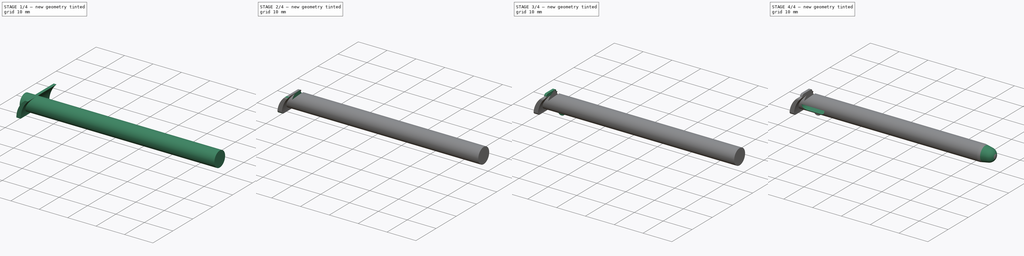
[diagram: build sequence overview — one tinted view per stage of 4, left to right]
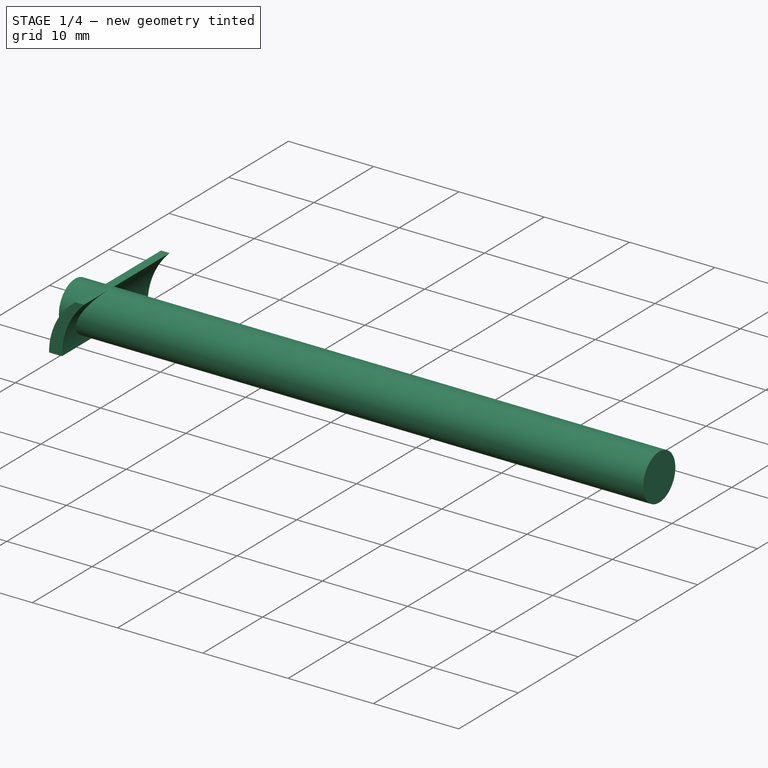
[diagram: stage 1 of 4 — iso view after this stage's code; geometry added in this stage tinted green]
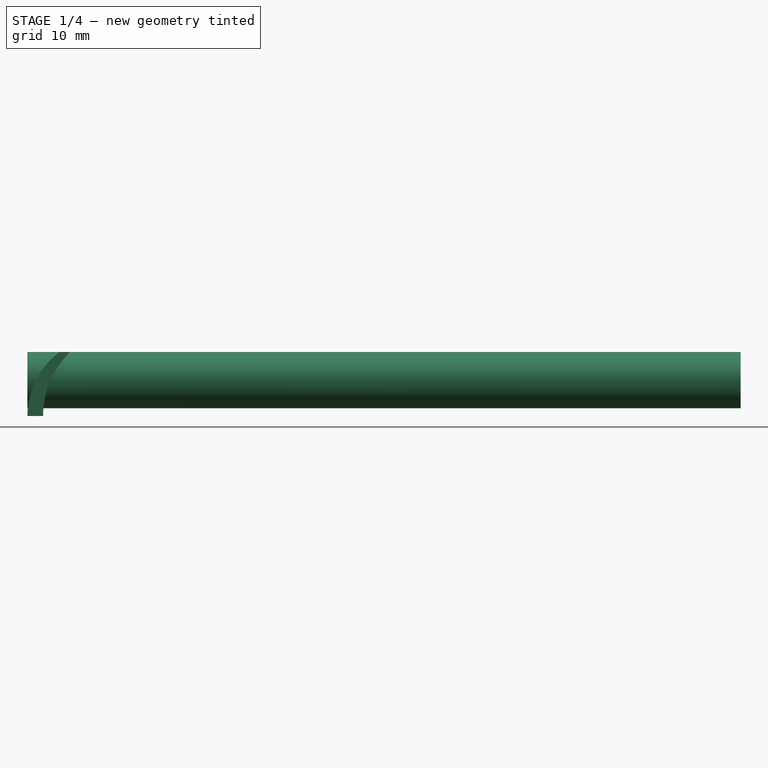
[diagram: stage 1 of 4 — front view after this stage's code; geometry added in this stage tinted green]
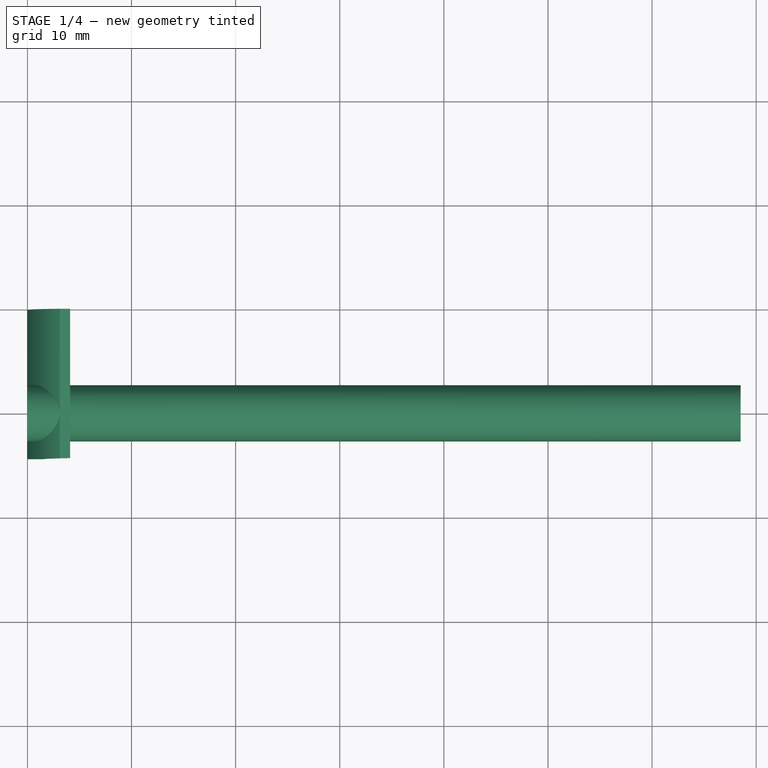
[diagram: stage 1 of 4 — top view after this stage's code; geometry added in this stage tinted green]
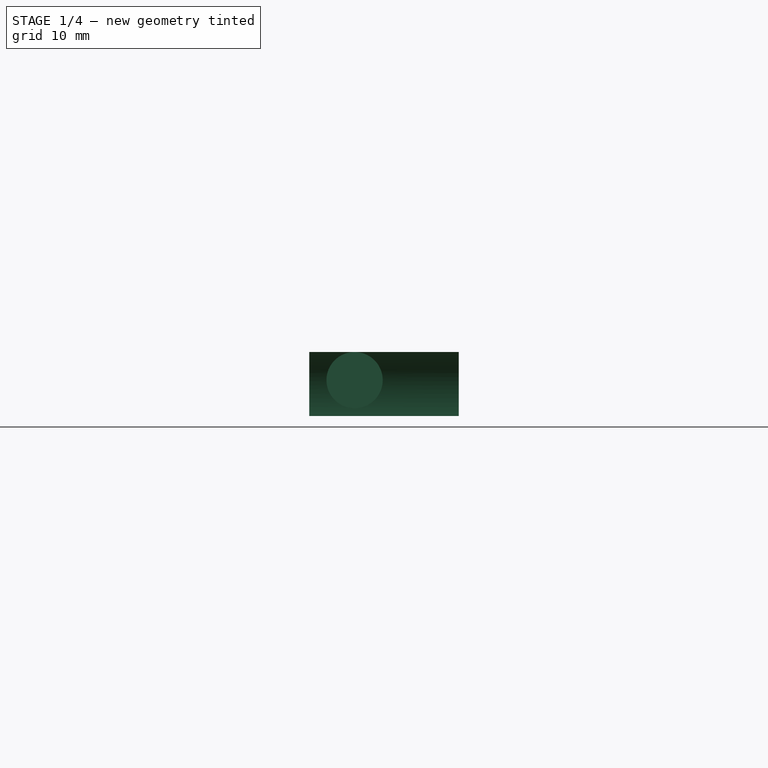
[diagram: stage 1 of 4 — right view after this stage's code; geometry added in this stage tinted green]
FCSTD DOCUMENT  (FreeCAD 1.0R39109 (Git))
Label: New 2DS XL Stylus
License: Creative Commons Attribution-NonCommercial-ShareAlike
LicenseURL: http://creativecommons.org/licenses/by-nc-sa/4.0/
objects: Sketcher::SketchObject×10, PartDesign::Pocket×5, PartDesign::Pad×4, PartDesign::Groove×1, PartDesign::Body×1
note: 51 computed .brp shape members not serialized (recipe doc carries the construction recipe); baked Part::Feature solids carry a one-line shape summary decoded from their .brp

FEATURE [Sketcher::SketchObject] Sketch
  ArcFitTolerance = 0
  AttachmentSupport = -> [YZ_Plane]
  FullyConstrained = true
  MakeInternals = false
  MapMode = 5
  Placement = pos=(0,0,0) rot=(0.57735,0.57735,0.57735;2.0944rad)
  sketch-geometry (1):
    g0: Circle CenterX=0 CenterY=0 CenterZ=0 NormalX=0 NormalY=0 NormalZ=1 AngleXU=0 Radius=2.7
  constraints (2):
    c: Coincident(g0,g-1)
    c: Diameter(g0) = 5.4
FEATURE [PartDesign::Pad] Pad
  Direction = (1,0,0)
  Length = 68.5
  Length2 = 10
  Placement = pos=(0,0,0) rot=(0.57735,0.57735,0.57735;2.0944rad)
  Profile = -> Sketch
  ReferenceAxis = -> Sketch [N_Axis]
  Suppressed = false
  Type = 0
FEATURE [Sketcher::SketchObject] Sketch001
  ArcFitTolerance = 0
  AttachmentSupport = -> [XZ_Plane]
  ExternalGeometry = -> [Pad]
  FullyConstrained = true
  MakeInternals = false
  MapMode = 5
  Placement = pos=(0,0,0) rot=(1,0,0;1.5708rad)
  sketch-geometry (9):
    g0: LineSegment [constr] StartX=0 StartY=0 StartZ=0 EndX=0 EndY=-3.45 EndZ=0
    g1: LineSegment [constr] StartX=0 StartY=-3.45 StartZ=0 EndX=4.1 EndY=-3.45 EndZ=0
    g2: LineSegment [constr] StartX=4.1 StartY=-3.45 StartZ=0 EndX=4.1 EndY=2.7 EndZ=0
    g3: LineSegment [constr] StartX=4.1 StartY=2.7 StartZ=0 EndX=-1.8e-15 EndY=2.7 EndZ=0
    g4: LineSegment [constr] StartX=-1.8e-15 StartY=2.7 StartZ=0 EndX=0 EndY=-3.45 EndZ=0
    g5: ArcOfCircle CenterX=7.6504 CenterY=-3.45 CenterZ=0 NormalX=0 NormalY=0 NormalZ=1 AngleXU=0 Radius=7.6504 StartAngle=2.2078 EndAngle=3.14159
    g6: ArcOfCircle CenterX=10.0736 CenterY=-3.45 CenterZ=0 NormalX=0 NormalY=0 NormalZ=1 AngleXU=0 Radius=8.57356 StartAngle=2.34164 EndAngle=3.14159
    g7: LineSegment StartX=3.1 StartY=2.7 StartZ=0 EndX=4.1 EndY=2.7 EndZ=0
    g8: LineSegment StartX=1.5 StartY=-3.45 StartZ=0 EndX=0 EndY=-3.45 EndZ=0
  constraints (25):
    c: Coincident(g0,g-1)
    c: Vertical(g0)
    c: Distance(g0) = 3.45
    c: Coincident(g1,g2)
    c: Coincident(g2,g3)
    c: Coincident(g3,g4)
    c: Coincident(g4,g1)
    c: Horizontal(g1)
    c: Horizontal(g3)
    c: Vertical(g2)
    c: Coincident(g1,g0)
    c: Distance(g3) = 4.1
    c: Coincident(g5,g0)
    c: PointOnObject(g5,g3)
    c: PointOnObject(g6,g1)
    c: Coincident(g6,g2)
    c: Tangent(g-2,g5)
    c: Distance(g6,g5) = 1
    c: Distance(g5,g6) = 1.5
    c: Perpendicular(g6,g1)
    c: Coincident(g7,g5)
    c: Coincident(g7,g6)
    c: Coincident(g8,g6)
    c: Coincident(g8,g5)
    c: Coincident(g3,g-3)
FEATURE [PartDesign::Pad] Pad001
  BaseFeature = -> Pad
  Direction = (0,-1,2e-16)
  Length = 4.35
  Length2 = 10
  Placement = pos=(0,0,0) rot=(0.57735,0.57735,0.57735;2.0944rad)
  Profile = -> Sketch001
  ReferenceAxis = -> Sketch001 [N_Axis]
  Suppressed = false
  Type = 4
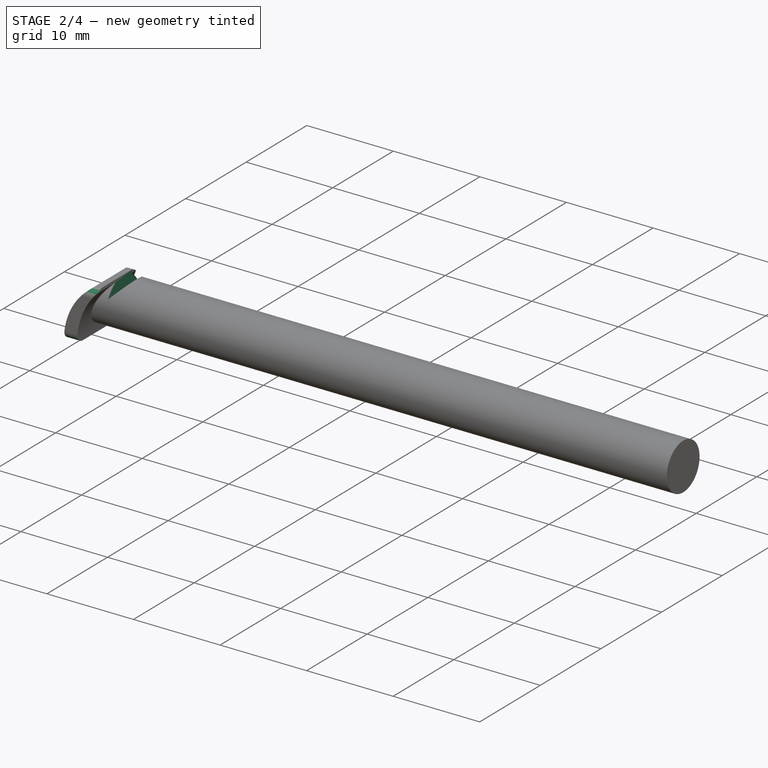
[diagram: stage 2 of 4 — iso view after this stage's code; geometry added in this stage tinted green]
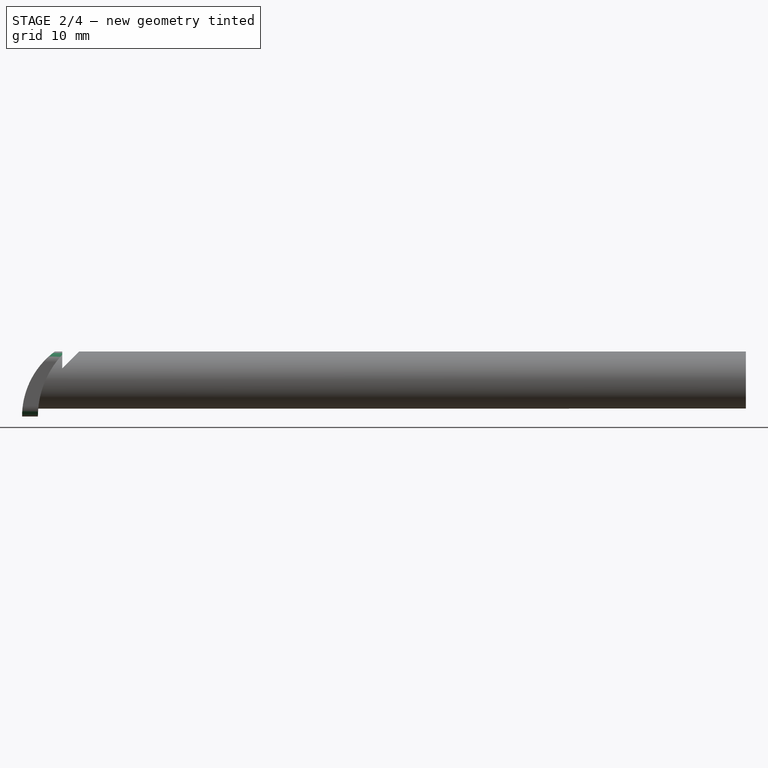
[diagram: stage 2 of 4 — front view after this stage's code; geometry added in this stage tinted green]
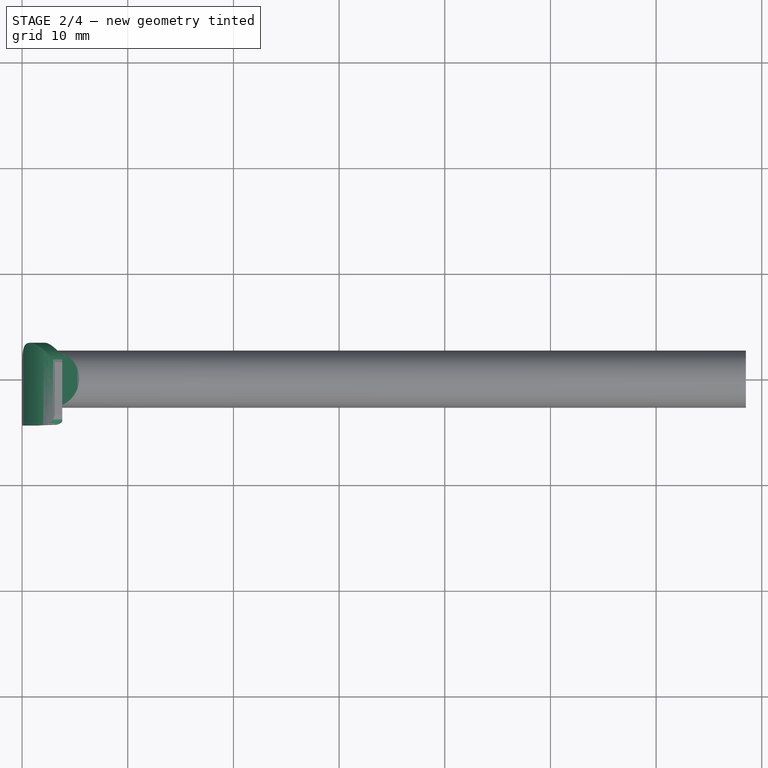
[diagram: stage 2 of 4 — top view after this stage's code; geometry added in this stage tinted green]
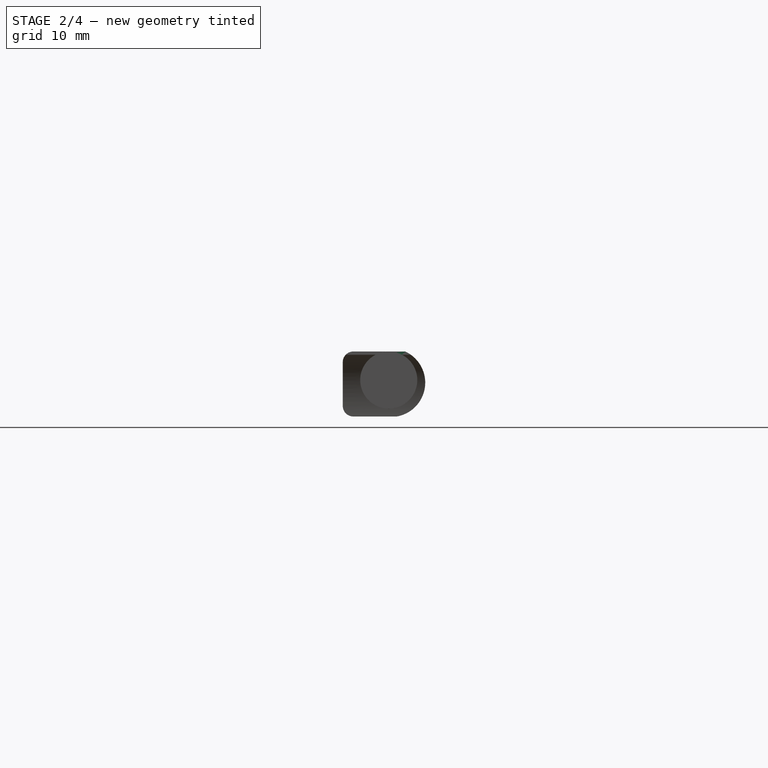
[diagram: stage 2 of 4 — right view after this stage's code; geometry added in this stage tinted green]
FEATURE [Sketcher::SketchObject] Sketch002
  ArcFitTolerance = 0
  AttachmentSupport = -> [Pad001]
  ExternalGeometry = -> [Pad001]
  FullyConstrained = true
  MakeInternals = false
  MapMode = 5
  Placement = pos=(0,0,0) rot=(0.57735,0.57735,-0.57735;4.18879rad)
  sketch-geometry (13):
    g0: LineSegment [constr] StartX=-4.35 StartY=3.45 StartZ=0 EndX=-4.35 EndY=-2.7 EndZ=0
    g1: ArcOfCircle CenterX=-3.35 CenterY=-1.7 CenterZ=0 NormalX=0 NormalY=0 NormalZ=1 AngleXU=0 Radius=1 StartAngle=3.14159 EndAngle=4.71239
    g2: ArcOfCircle CenterX=-3.35 CenterY=2.45 CenterZ=0 NormalX=0 NormalY=0 NormalZ=1 AngleXU=0 Radius=1 StartAngle=1.5708 EndAngle=3.14159
    g3: LineSegment StartX=-4.35 StartY=2.45 StartZ=0 EndX=-4.35 EndY=3.45 EndZ=0
    g4: LineSegment StartX=-4.35 StartY=3.45 StartZ=0 EndX=-3.35 EndY=3.45 EndZ=0
    g5: LineSegment StartX=-4.35 StartY=-1.7 StartZ=0 EndX=-4.35 EndY=-2.7 EndZ=0
    g6: LineSegment StartX=-4.35 StartY=-2.7 StartZ=0 EndX=-3.35 EndY=-2.7 EndZ=0
    g7: LineSegment [constr] StartX=-3.35 StartY=-2.7 StartZ=0 EndX=1.564 EndY=-2.7 EndZ=0
    g8: ArcOfCircle CenterX=0.200162 CenterY=0.249991 CenterZ=0 NormalX=0 NormalY=0 NormalZ=1 AngleXU=0 Radius=3.25 StartAngle=5.14544 EndAngle=7.67836
    g9: LineSegment [constr] StartX=-3.35 StartY=3.45 StartZ=0 EndX=0.768 EndY=3.45 EndZ=0
    g10: LineSegment StartX=0.768 StartY=3.45 StartZ=0 EndX=10 EndY=3.45 EndZ=0
    g11: LineSegment StartX=10 StartY=3.45 StartZ=0 EndX=10 EndY=-2.7 EndZ=0
    g12: LineSegment StartX=10 StartY=-2.7 StartZ=0 EndX=1.564 EndY=-2.7 EndZ=0
  constraints (35):
    c: Coincident(g0,g-3)
    c: Coincident(g0,g-4)
    c: PointOnObject(g1,g0)
    c: PointOnObject(g1,g-4)
    c: Tangent(g2,g0) = -1.5708
    c: Tangent(g2,g-3) = -1.5708
    c: Coincident(g3,g2)
    c: Coincident(g3,g0)
    c: Vertical(g3)
    c: Tangent(g3,g2)
    c: Coincident(g4,g3)
    c: Coincident(g4,g2)
    c: Coincident(g5,g1)
    c: Coincident(g5,g0)
    c: Tangent(g5,g1)
    c: Coincident(g6,g5)
    c: Radius(g1) = 1
    c: Equal(g1,g2)
    c: Tangent(g1,g6) = -1.5708
    c: Coincident(g7,g1)
    c: Horizontal(g7)
    c: Distance(g7) = 4.914
    c: Coincident(g8,g7)
    c: PointOnObject(g8,g-3)
    c: Radius(g8) = 3.25
    c: Coincident(g9,g2)
    c: Coincident(g9,g8)
    c: Distance(g9) = 4.118
    c: Coincident(g10,g8)
    c: Coincident(g10,g-3)
    c: Coincident(g11,g10)
    c: Vertical(g11)
    c: Coincident(g12,g11)
    c: Coincident(g12,g8)
    c: Horizontal(g12)
FEATURE [PartDesign::Pocket] Pocket
  BaseFeature = -> Pad001
  Direction = (1,0,0)
  Length = 10
  Length2 = 5
  Placement = pos=(0,0,0) rot=(0.57735,0.57735,0.57735;2.0944rad)
  Profile = -> Sketch002
  ReferenceAxis = -> Sketch002 [N_Axis]
  Suppressed = false
  Type = 0
FEATURE [Sketcher::SketchObject] Sketch003
  ArcFitTolerance = 0
  AttachmentSupport = -> [Pad001]
  ExternalGeometry = -> [Pad001]
  FullyConstrained = true
  MakeInternals = false
  MapMode = 5
  Placement = pos=(0,-4.35,1.4e-15) rot=(0.57735,0.57735,-0.57735;2.0944rad)
  sketch-geometry (4):
    g0: LineSegment StartX=-2.7 StartY=3.1 StartZ=0 EndX=-2.7 EndY=-1 EndZ=0
    g1: LineSegment StartX=-2.7 StartY=-1 StartZ=0 EndX=3.45 EndY=-1 EndZ=0
    g2: LineSegment StartX=3.45 StartY=-1 StartZ=0 EndX=3.45 EndY=3.6e-15 EndZ=0
    g3: ArcOfCircle CenterX=3.45 CenterY=7.6504 CenterZ=0 NormalX=0 NormalY=0 NormalZ=1 AngleXU=0 Radius=7.6504 StartAngle=3.7786 EndAngle=4.71239
  constraints (11):
    c: Coincident(g0,g-3)
    c: Vertical(g0)
    c: Coincident(g1,g0)
    c: Horizontal(g1)
    c: Coincident(g2,g1)
    c: Coincident(g2,g-3)
    c: Vertical(g2)
    c: Coincident(g3,g0)
    c: Coincident(g3,g2)
    c: Equal(g3,g-3)
    c: Distance(g2) = 1
FEATURE [PartDesign::Pocket] Pocket001
  BaseFeature = -> Pocket
  Direction = (0,1,0)
  Length = 10
  Length2 = 5
  Placement = pos=(0,0,0) rot=(0.57735,0.57735,0.57735;2.0944rad)
  Profile = -> Sketch003
  ReferenceAxis = -> Sketch003 [N_Axis]
  Refine = true
  Suppressed = false
  Type = 0
FEATURE [Sketcher::SketchObject] Sketch004
  ArcFitTolerance = 0
  AttachmentSupport = -> [Pocket001]
  ExternalGeometry = -> [Pocket001]
  FullyConstrained = true
  MakeInternals = false
  MapMode = 5
  Placement = pos=(0,-4.35,4.3e-15) rot=(0.57735,0.57735,-0.57735;2.0944rad)
  sketch-geometry (11):
    g0: LineSegment StartX=-2.7 StartY=4.17574 StartZ=0 EndX=-2.7 EndY=4.55147 EndZ=0
    g1: LineSegment [constr] StartX=-2.7 StartY=4.55147 StartZ=0 EndX=-2.32426 EndY=4.17574 EndZ=0
    g2: LineSegment [constr] StartX=-2.7 StartY=4.17574 StartZ=0 EndX=-2.32426 EndY=4.17574 EndZ=0
    g3: LineSegment StartX=-2.7 StartY=4.17574 StartZ=0 EndX=-2.7 EndY=3.8 EndZ=0
    g4: LineSegment StartX=-2.7 StartY=3.8 StartZ=0 EndX=-1.94853 EndY=3.8 EndZ=0
    g5: LineSegment [constr] StartX=-1.94853 StartY=3.8 StartZ=0 EndX=-2.32426 EndY=4.17574 EndZ=0
    g6: LineSegment [constr] StartX=-2.32426 StartY=4.17574 StartZ=0 EndX=-1.9 EndY=4.6 EndZ=0
    g7: LineSegment StartX=-1.94853 StartY=3.8 StartZ=0 EndX=-1.1 EndY=3.8 EndZ=0
    g8: LineSegment StartX=-1.1 StartY=3.8 StartZ=0 EndX=-2.7 EndY=5.4 EndZ=0
    g9: LineSegment StartX=-2.7 StartY=5.4 StartZ=0 EndX=-2.7 EndY=4.55147 EndZ=0
    g10: LineSegment [constr] StartX=-2.7 StartY=3.8 StartZ=0 EndX=-2.7 EndY=0 EndZ=0
  constraints (31):
    c: Vertical(g0)
    c: Coincident(g1,g0)
    c: Coincident(g2,g0)
    c: Coincident(g2,g1)
    c: Horizontal(g2)
    c: Coincident(g3,g0)
    c: Vertical(g3)
    c: Coincident(g4,g3)
    c: Horizontal(g4)
    c: Coincident(g5,g4)
    c: Coincident(g5,g1)
    c: Parallel(g1,g5)
    c: Coincident(g6,g1)
    c: Coincident(g7,g4)
    c: Horizontal(g7)
    c: Coincident(g8,g7)
    c: Coincident(g9,g8)
    c: Coincident(g9,g0)
    c: Vertical(g9)
    c: Distance(g6) = 0.6
    c: Perpendicular(g6,g5)
    c: PointOnObject(g6,g8)
    c: Parallel(g8,g1)
    c: Equal(g0,g2)
    c: Distance(g3,g7) = 1.6
    c: Coincident(g10,g3)
    c: PointOnObject(g10,g-1)
    c: Vertical(g10)
    c: Distance(g10) = 3.8
    c: PointOnObject(g3,g-3)
    c: Equal(g0,g3)
FEATURE [PartDesign::Pocket] Pocket002
  BaseFeature = -> Pocket001
  Direction = (0,1,0)
  Length = 200
  Length2 = 5
  Placement = pos=(0,0,0) rot=(0.57735,0.57735,0.57735;2.0944rad)
  Profile = -> Sketch004
  ReferenceAxis = -> Sketch004 [N_Axis]
  Refine = true
  Suppressed = false
  Type = 0
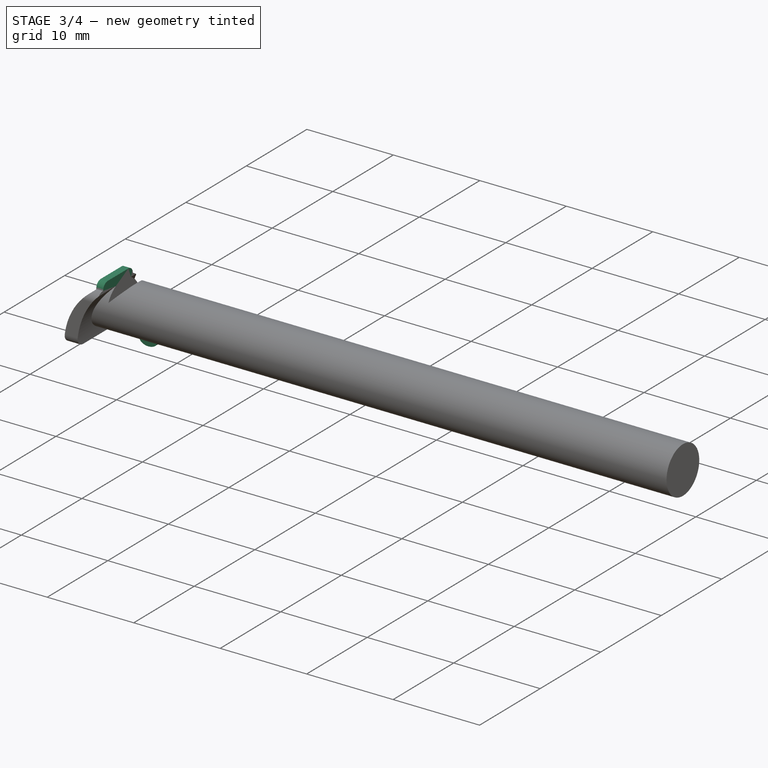
[diagram: stage 3 of 4 — iso view after this stage's code; geometry added in this stage tinted green]
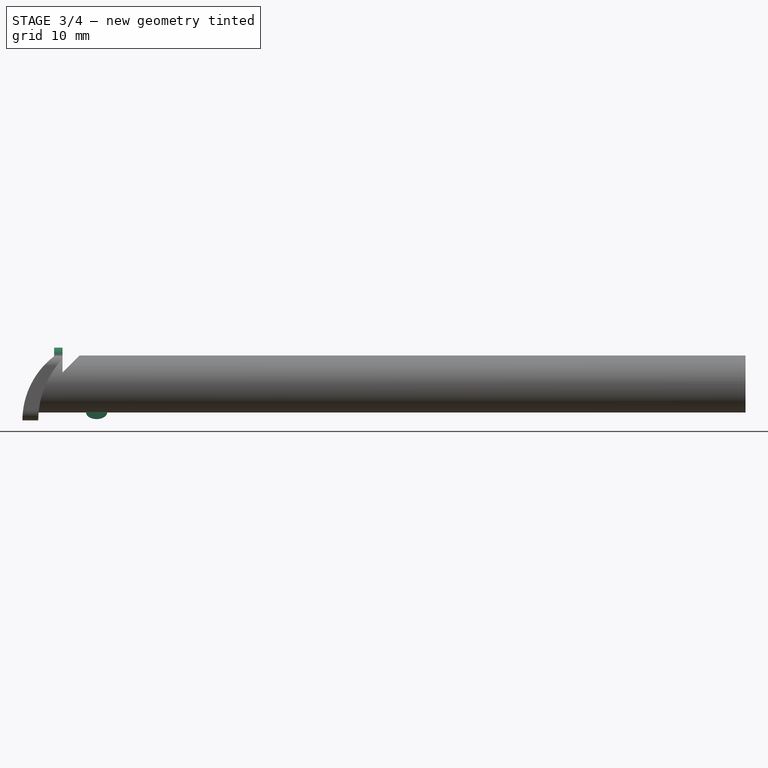
[diagram: stage 3 of 4 — front view after this stage's code; geometry added in this stage tinted green]
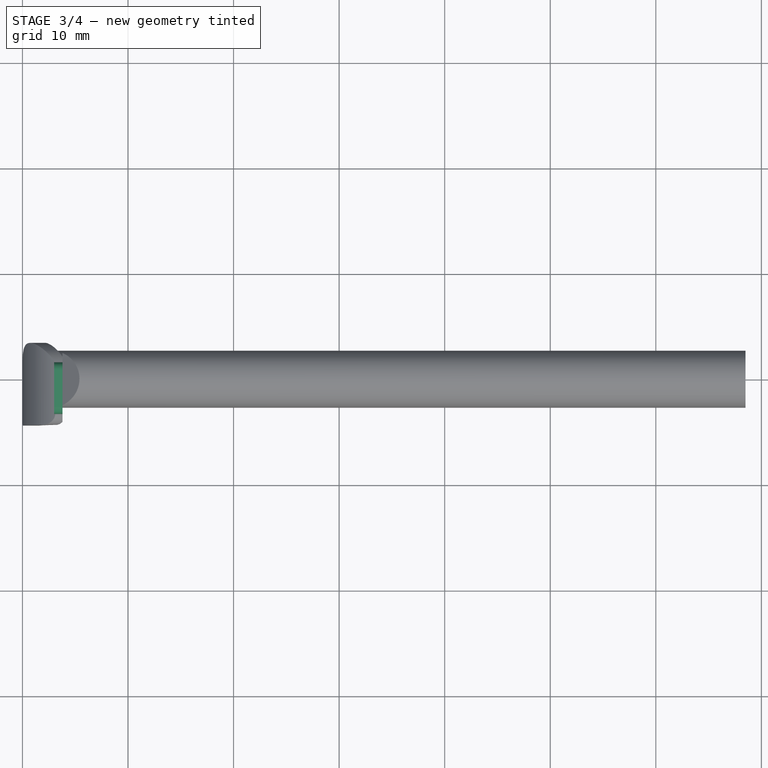
[diagram: stage 3 of 4 — top view after this stage's code; geometry added in this stage tinted green]
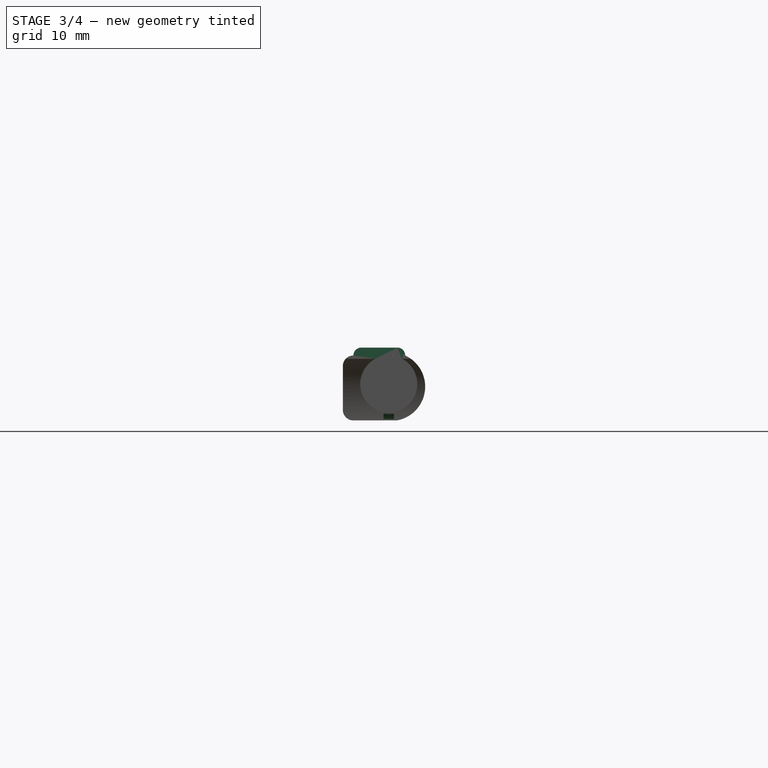
[diagram: stage 3 of 4 — right view after this stage's code; geometry added in this stage tinted green]
FEATURE [Sketcher::SketchObject] Sketch005
  ArcFitTolerance = 0
  AttachmentSupport = -> [Pocket002]
  ExternalGeometry = -> [Pocket002]
  FullyConstrained = true
  MakeInternals = false
  MapMode = 5
  Placement = pos=(4.96e-14,3.2e-15,2.7) rot=(0,0,-1;1.5708rad)
  sketch-geometry (4):
    g0: LineSegment StartX=-1.564 StartY=3.8 StartZ=0 EndX=3.35 EndY=3.8 EndZ=0
    g1: LineSegment StartX=3.35 StartY=3.8 StartZ=0 EndX=3.35 EndY=3 EndZ=0
    g2: LineSegment StartX=3.35 StartY=3 StartZ=0 EndX=-1.564 EndY=3 EndZ=0
    g3: LineSegment StartX=-1.564 StartY=3 StartZ=0 EndX=-1.564 EndY=3.8 EndZ=0
  constraints (11):
    c: Coincident(g0,g1)
    c: Coincident(g1,g2)
    c: Coincident(g2,g3)
    c: Coincident(g3,g0)
    c: Horizontal(g0)
    c: Horizontal(g2)
    c: Vertical(g1)
    c: Vertical(g3)
    c: Coincident(g0,g-3)
    c: PointOnObject(g-4,g1)
    c: Distance(g1) = 0.8
FEATURE [PartDesign::Pad] Pad002
  BaseFeature = -> Pocket002
  Direction = (1.84e-14,1.2e-15,1)
  Length = 0.75
  Length2 = 0.25
  Placement = pos=(0,0,0) rot=(0.57735,0.57735,0.57735;2.0944rad)
  Profile = -> Sketch005
  ReferenceAxis = -> Sketch005 [N_Axis]
  Refine = true
  Suppressed = false
  Type = 4
FEATURE [Sketcher::SketchObject] Sketch006
  ArcFitTolerance = 0
  AttachmentSupport = -> [Pad002]
  ExternalGeometry = -> [Pad002]
  FullyConstrained = true
  MakeInternals = false
  MapMode = 5
  Placement = pos=(3,7e-16,-5.41e-14) rot=(-0.57735,-0.57735,0.57735;2.0944rad)
  sketch-geometry (7):
    g0: LineSegment [constr] StartX=-3.35 StartY=-3.45 StartZ=0 EndX=1.564 EndY=-3.45 EndZ=0
    g1: ArcOfCircle CenterX=-2.6 CenterY=-2.7 CenterZ=0 NormalX=0 NormalY=0 NormalZ=1 AngleXU=0 Radius=0.75 StartAngle=3.14159 EndAngle=4.71239
    g2: ArcOfCircle CenterX=0.814 CenterY=-2.7 CenterZ=0 NormalX=0 NormalY=0 NormalZ=1 AngleXU=0 Radius=0.75 StartAngle=4.71239 EndAngle=6.28319
    g3: LineSegment StartX=-3.35 StartY=-2.7 StartZ=0 EndX=-3.35 EndY=-3.45 EndZ=0
    g4: LineSegment StartX=-3.35 StartY=-3.45 StartZ=0 EndX=-2.6 EndY=-3.45 EndZ=0
    g5: LineSegment StartX=0.814 StartY=-3.45 StartZ=0 EndX=1.564 EndY=-3.45 EndZ=0
    g6: LineSegment StartX=1.564 StartY=-3.45 StartZ=0 EndX=1.564 EndY=-2.7 EndZ=0
  constraints (16):
    c: Coincident(g0,g-3)
    c: Coincident(g0,g-4)
    c: Tangent(g2,g-4) = 1.5708
    c: Tangent(g2,g0) = -1.5708
    c: Tangent(g1,g0) = -1.5708
    c: Tangent(g1,g-3) = -1.5708
    c: Equal(g1,g2)
    c: Radius(g1) = 0.75
    c: Coincident(g3,g1)
    c: Coincident(g3,g0)
    c: Coincident(g4,g3)
    c: Coincident(g4,g1)
    c: Coincident(g5,g2)
    c: Coincident(g5,g0)
    c: Coincident(g6,g5)
    c: Coincident(g6,g2)
FEATURE [PartDesign::Pocket] Pocket003
  BaseFeature = -> Pad002
  Direction = (1,1e-16,-1.79e-14)
  Length = 5
  Length2 = 5
  Placement = pos=(0,0,0) rot=(0.57735,0.57735,0.57735;2.0944rad)
  Profile = -> Sketch006
  ReferenceAxis = -> Sketch006 [N_Axis]
  Refine = true
  Suppressed = false
  Type = 0
FEATURE [Sketcher::SketchObject] Sketch007
  ArcFitTolerance = 0
  AttachmentSupport = -> [XZ_Plane]
  ExternalGeometry = -> [Pad]
  FullyConstrained = true
  MakeInternals = false
  MapMode = 5
  Placement = pos=(0,0,0) rot=(1,0,0;1.5708rad)
  sketch-geometry (9):
    g0: LineSegment [constr] StartX=0 StartY=0 StartZ=0 EndX=8.025 EndY=0 EndZ=0
    g1: LineSegment [constr] StartX=0 StartY=-2.7 StartZ=0 EndX=6.025 EndY=-2.7 EndZ=0
    g2: LineSegment [constr] StartX=8.025 StartY=0 StartZ=0 EndX=8.025 EndY=-2.7 EndZ=0
    g3: LineSegment [constr] StartX=8.025 StartY=-2.7 StartZ=0 EndX=6.025 EndY=-2.7 EndZ=0
    g4: Ellipse CenterX=7.025 CenterY=-2.7 CenterZ=0 NormalX=0 NormalY=0 NormalZ=1 MajorRadius=1 MinorRadius=0.625 AngleXU=1.1e-15
    g5: LineSegment [constr] StartX=8.025 StartY=-2.7 StartZ=0 EndX=6.025 EndY=-2.7 EndZ=0
    g6: LineSegment [constr] StartX=7.025 StartY=-2.075 StartZ=0 EndX=7.025 EndY=-3.325 EndZ=0
    g7: GeomPoint [constr] X=7.80562 Y=-2.7 Z=0
    g8: GeomPoint [constr] X=6.24438 Y=-2.7 Z=0
  constraints (15):
    c: Coincident(g0,g-1)
    c: PointOnObject(g0,g-1)
    c: Distance(g0) = 8.025
    c: Coincident(g1,g-3)
    c: Horizontal(g1)
    c: Coincident(g2,g0)
    c: Vertical(g2)
    c: Coincident(g3,g2)
    c: Coincident(g3,g1)
    c: Horizontal(g3)
    c: InternalAlignment(g5-g8 -> g4) x4
    c: Distance(g6) = 1.25
    c: Distance(g5) = 2
    c: Symmetric(g1,g2,g4)
    c: Coincident(g5,g2)
FEATURE [PartDesign::Pad] Pad003
  BaseFeature = -> Pocket003
  Direction = (0,-1,2e-16)
  Length = 0.5
  Length2 = 0.5
  Placement = pos=(0,0,0) rot=(0.57735,0.57735,0.57735;2.0944rad)
  Profile = -> Sketch007
  ReferenceAxis = -> Sketch007 [N_Axis]
  Refine = true
  Suppressed = false
  Type = 4
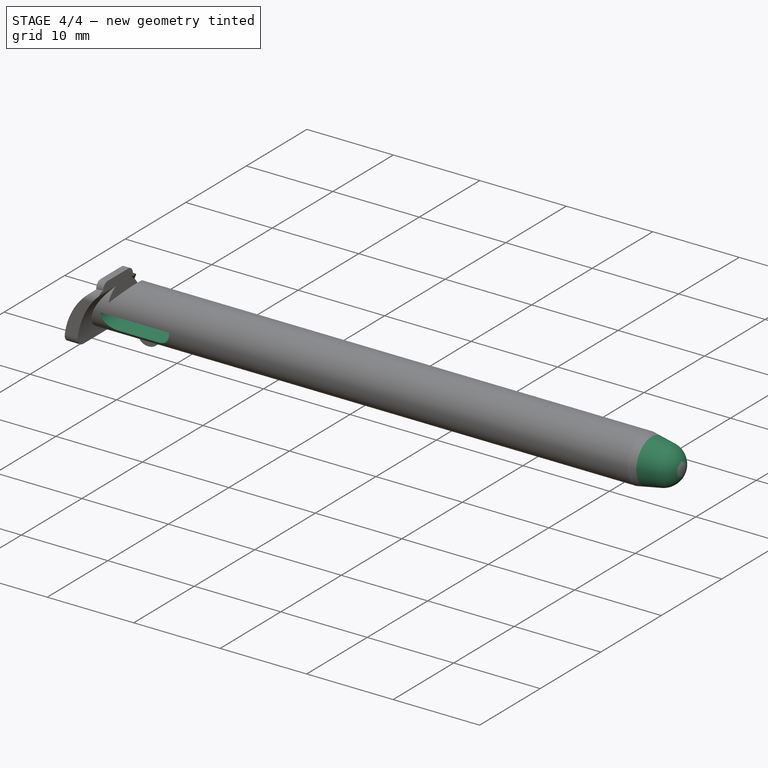
[diagram: stage 4 of 4 — iso view after this stage's code; geometry added in this stage tinted green]
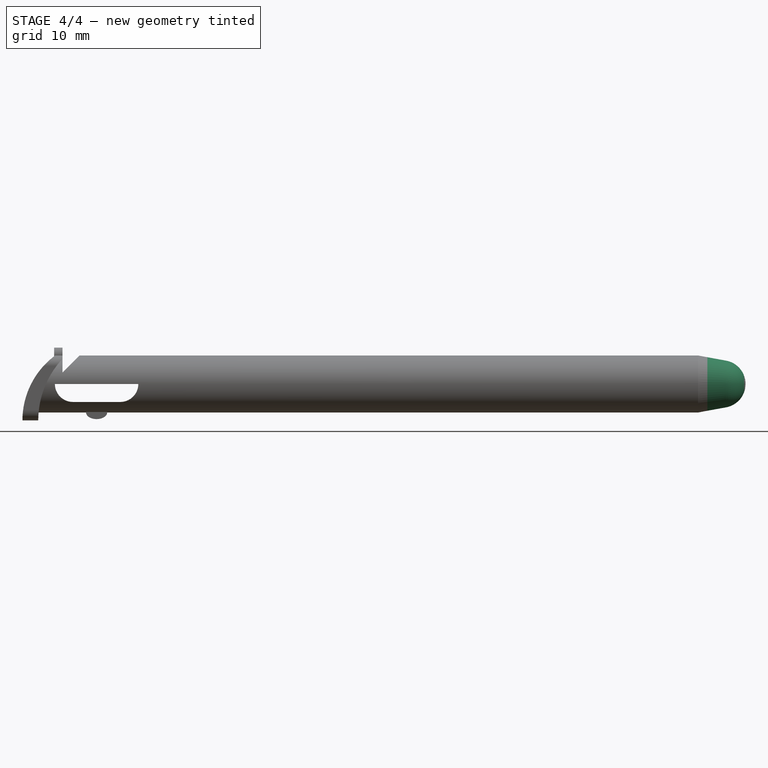
[diagram: stage 4 of 4 — front view after this stage's code; geometry added in this stage tinted green]
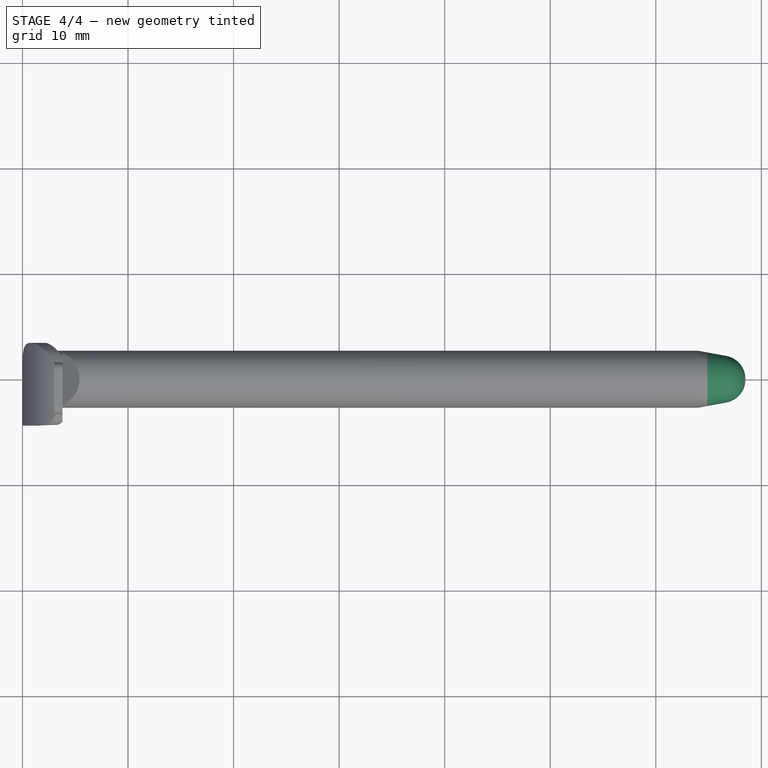
[diagram: stage 4 of 4 — top view after this stage's code; geometry added in this stage tinted green]
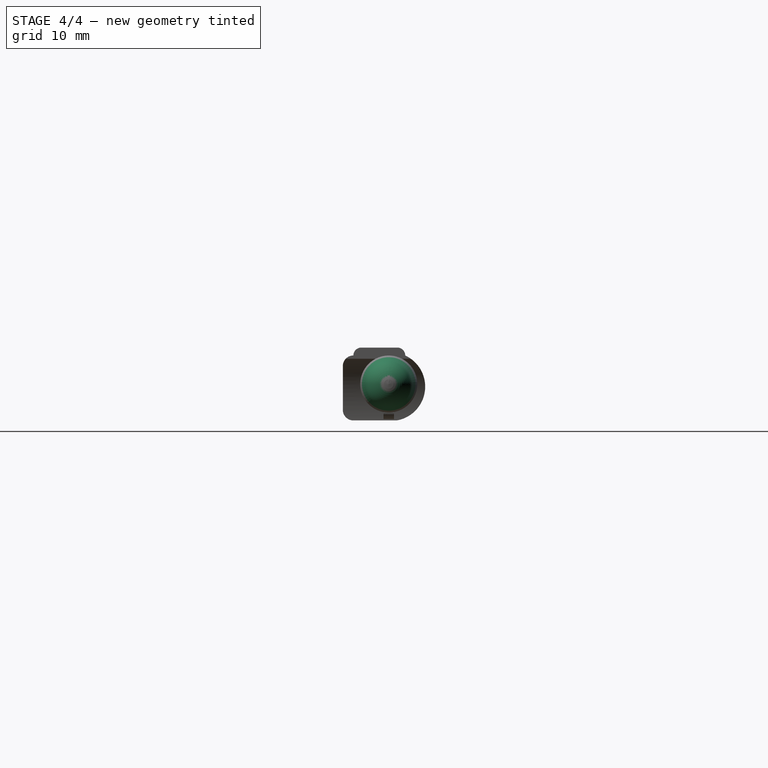
[diagram: stage 4 of 4 — right view after this stage's code; geometry added in this stage tinted green]
FEATURE [Sketcher::SketchObject] Sketch008
  ArcFitTolerance = 0
  AttachmentSupport = -> [XZ_Plane]
  ExternalGeometry = -> [Pad003]
  FullyConstrained = false
  MakeInternals = false
  MapMode = 5
  Placement = pos=(0,0,0) rot=(1,0,0;1.5708rad)
  sketch-geometry (8):
    g0: ArcOfCircle [constr] CenterX=4.775 CenterY=0 CenterZ=0 NormalX=0 NormalY=0 NormalZ=1 AngleXU=0 Radius=1.7 StartAngle=1.5708 EndAngle=4.71239
    g1: ArcOfCircle [constr] CenterX=9.275 CenterY=0 CenterZ=0 NormalX=0 NormalY=0 NormalZ=1 AngleXU=0 Radius=1.7 StartAngle=4.71239 EndAngle=7.85398
    g2: LineSegment StartX=4.775 StartY=-1.7 StartZ=0 EndX=9.275 EndY=-1.7 EndZ=0
    g3: LineSegment [constr] StartX=9.275 StartY=1.7 StartZ=0 EndX=4.775 EndY=1.7 EndZ=0
    g4: LineSegment [constr] StartX=7.025 StartY=-2.7 StartZ=0 EndX=7.025 EndY=-1.7 EndZ=0
    g5: ArcOfCircle CenterX=4.775 CenterY=0 CenterZ=0 NormalX=0 NormalY=0 NormalZ=1 AngleXU=0 Radius=1.7 StartAngle=3.14159 EndAngle=4.71239
    g6: ArcOfCircle CenterX=9.275 CenterY=0 CenterZ=0 NormalX=0 NormalY=0 NormalZ=1 AngleXU=0 Radius=1.7 StartAngle=4.71239 EndAngle=6.28319
    g7: LineSegment StartX=3.075 StartY=2e-16 StartZ=0 EndX=10.975 EndY=-5e-16 EndZ=0
  constraints (20):
    c: Tangent(g0,g2) = -1.5708
    c: Tangent(g2,g1) = -1.5708
    c: Tangent(g1,g3) = -1.5708
    c: Tangent(g3,g0) = -1.5708
    c: Equal(g0,g1)
    c: PointOnObject(g0,g-1)
    c: Horizontal(g2)
    c: Vertical(g4)
    c: Symmetric(g0,g1,g4)
    c: Distance(g4) = 1
    c: Distance(g2) = 4.5
    c: PointOnObject(g5,g0)
    c: Coincident(g5,g2)
    c: Coincident(g6,g2)
    c: PointOnObject(g6,g1)
    c: Coincident(g7,g5)
    c: Coincident(g7,g6)
    c: Tangent(g7,g-1)
    c: Equal(g5,g0)
    c: Equal(g6,g1)
FEATURE [PartDesign::Pocket] Pocket004
  BaseFeature = -> Pad003
  Direction = (0,1,-2e-16)
  Length = 10
  Length2 = 10
  Placement = pos=(0,0,0) rot=(0.57735,0.57735,0.57735;2.0944rad)
  Profile = -> Sketch008
  ReferenceAxis = -> Sketch008 [N_Axis]
  Refine = true
  Suppressed = false
  Type = 4
FEATURE [Sketcher::SketchObject] Sketch009
  ArcFitTolerance = 0
  AttachmentSupport = -> [XZ_Plane]
  ExternalGeometry = -> [Pocket004]
  FullyConstrained = true
  MakeInternals = false
  MapMode = 5
  Placement = pos=(0,0,0) rot=(1,0,0;1.5708rad)
  sketch-geometry (6):
    g0: LineSegment StartX=68.5 StartY=2.7 StartZ=0 EndX=64 EndY=2.7 EndZ=0
    g1: LineSegment StartX=64 StartY=2.7 StartZ=0 EndX=66.6557 EndY=2.21311 EndZ=0
    g2: ArcOfCircle CenterX=66.25 CenterY=-8.83891e-07 CenterZ=0 NormalX=0 NormalY=0 NormalZ=1 AngleXU=0 Radius=2.25 StartAngle=3.92841e-07 EndAngle=1.38948
    g3: LineSegment StartX=68.5 StartY=2.7 StartZ=0 EndX=69.5 EndY=2.7 EndZ=0
    g4: LineSegment StartX=69.5 StartY=2.7 StartZ=0 EndX=69.5 EndY=4.93e-14 EndZ=0
    g5: LineSegment StartX=69.5 StartY=4.92e-14 StartZ=0 EndX=68.5 EndY=4.92e-14 EndZ=0
  constraints (16):
    c: Coincident(g0,g-3)
    c: Horizontal(g0)
    c: Coincident(g1,g0)
    c: Symmetric(g0,g-3,g2)
    c: Tangent(g2,g-3)
    c: Tangent(g2,g1) = 1.5708
    c: Distance(g0) = 4.5
    c: Diameter(g2) = 4.5
    c: Coincident(g3,g0)
    c: Horizontal(g3)
    c: Coincident(g4,g3)
    c: Vertical(g4)
    c: Coincident(g5,g4)
    c: Coincident(g5,g2)
    c: Horizontal(g5)
    c: Distance(g5) = 1
FEATURE [PartDesign::Groove] Groove
  Angle = 360
  Angle2 = 60
  Axis = (1,0,0)
  Base = (0,0,0)
  BaseFeature = -> Pocket004
  Placement = pos=(0,0,0) rot=(0.57735,0.57735,0.57735;2.0944rad)
  Profile = -> Sketch009
  ReferenceAxis = -> Sketch009 [H_Axis]
  Refine = true
  Reversed = true
  Suppressed = false
  Type = 0
FEATURE [PartDesign::Body] Body  label="New Nintendo 2DS XL Stylus"
  AllowCompound = false
  Group = -> [Sketch,Pad,Sketch001,Pad001,Sketch002,Pocket,Sketch003,Pocket001,Sketch004,Pocket002,Sketch005,Pad002,Sketch006,Pocket003,Sketch007,Pad003,Sketch008,Pocket004,Sketch009,Groove]
  Origin = -> Origin
  Tip = -> Groove
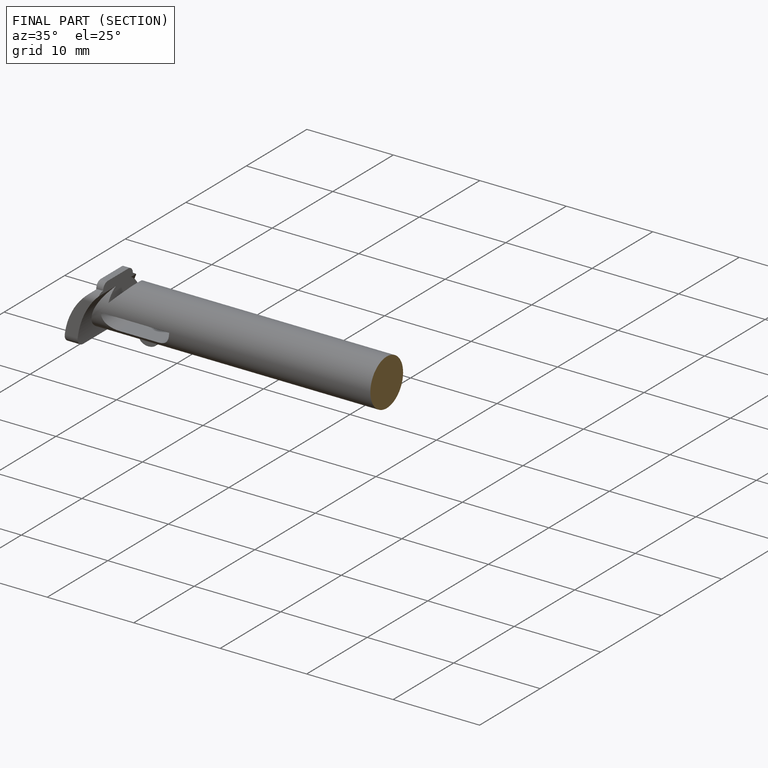
[diagram: finished part — half-section view (interior)]
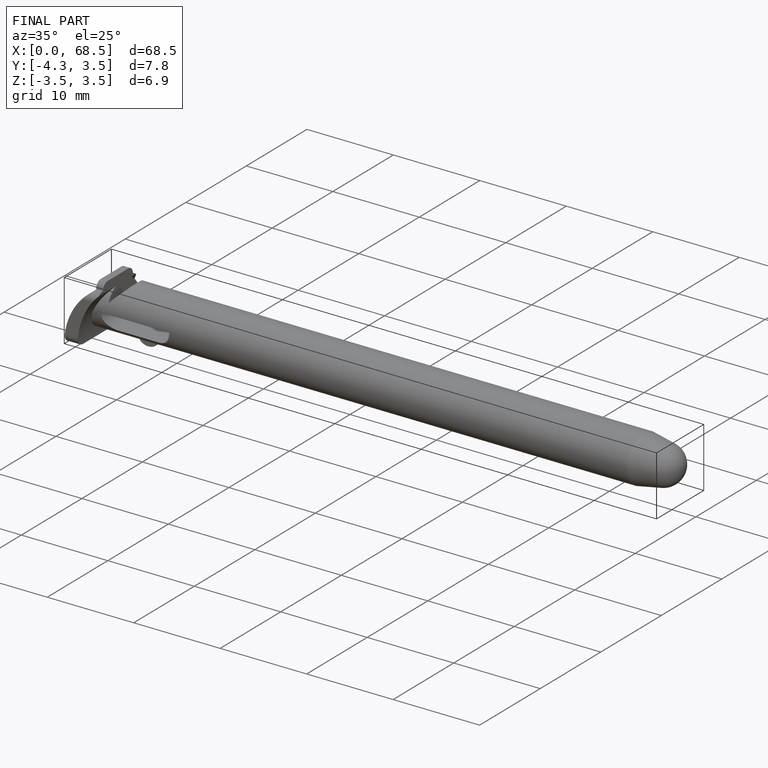
[diagram: finished part — iso view with bounding-box wireframe]
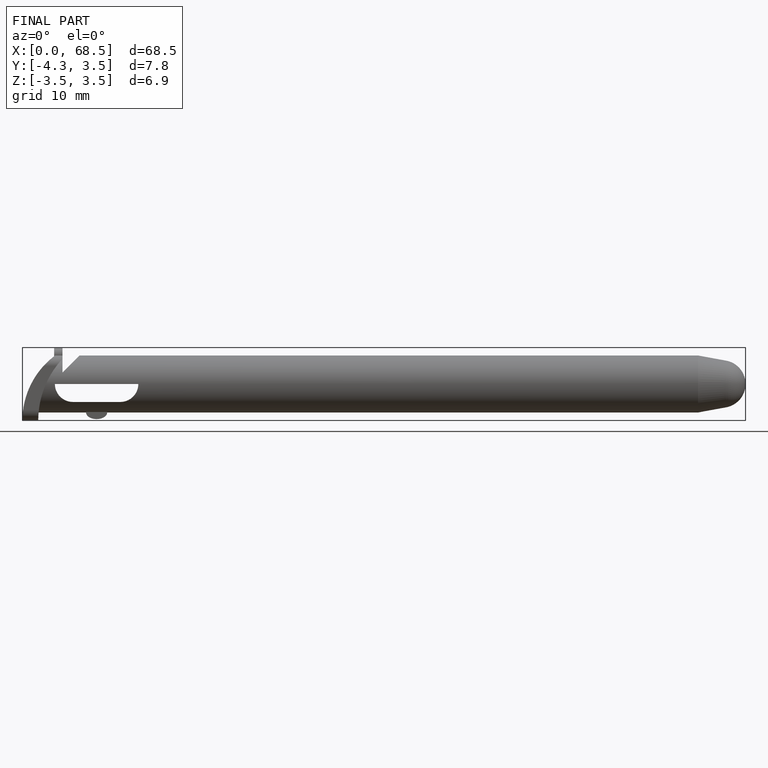
[diagram: finished part — front view with bounding-box wireframe]
